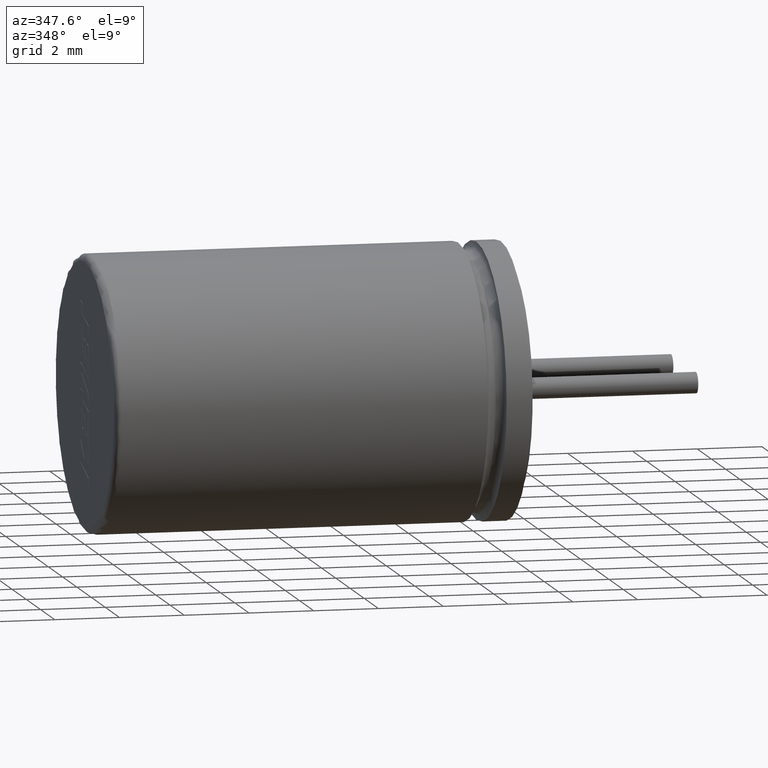
[diagram: clean part render]
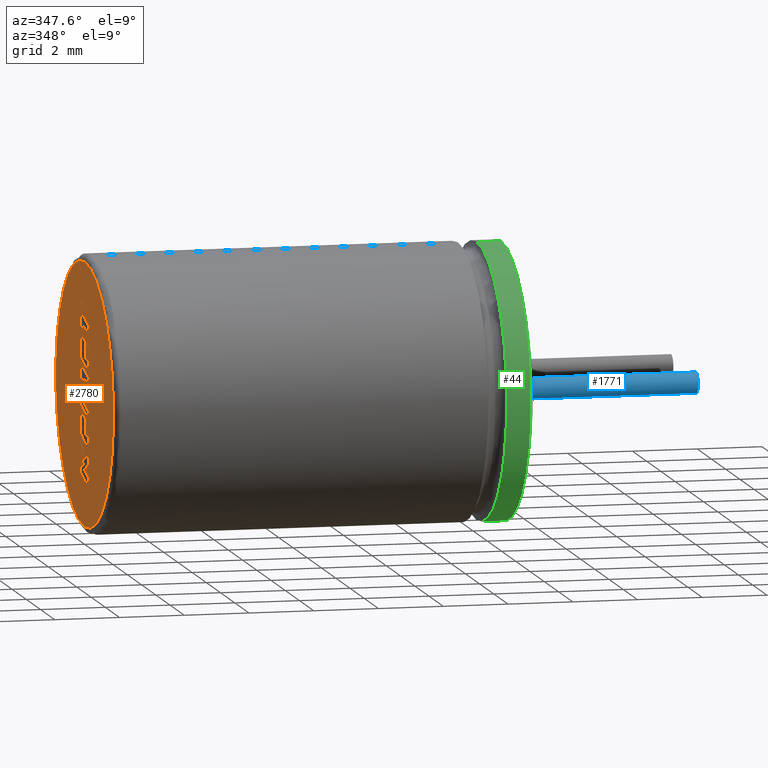
[diagram: same view with three faces highlighted in distinct colors, each labeled with its STEP entity id]
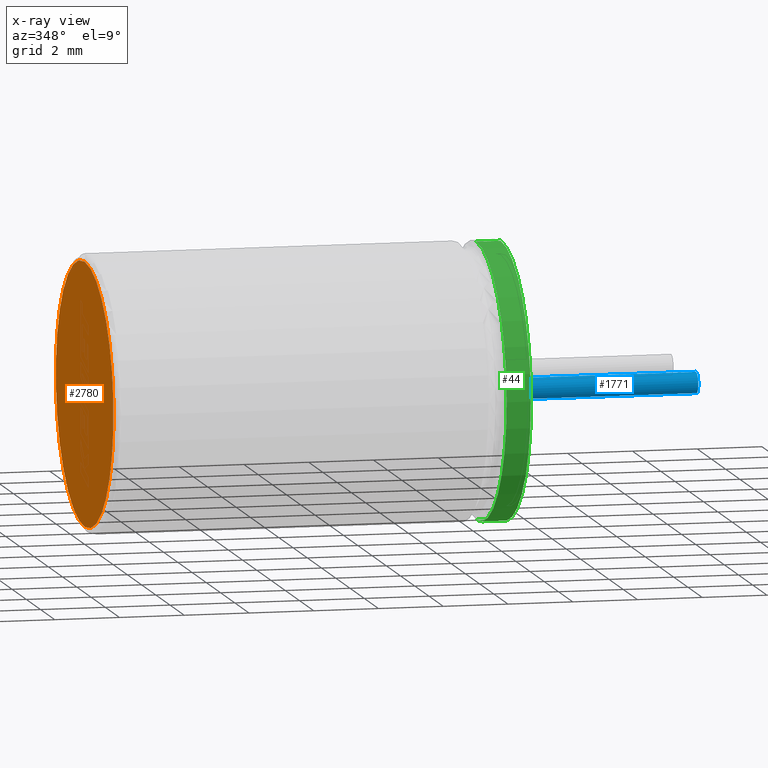
[diagram: x-ray of the same camera — body ghosted, the three highlighted faces saturated]
A machine part, auxiliary view with three faces highlighted in distinct colors.
The next image is the same camera in x-ray (body ghosted, the three faces saturated) — at least one of them is partly hidden behind the body in this view.
Their STEP definitions:

[orange] entity #2780 — the highlighted planar face has unit normal (1, 0, 0).
#9 = CARTESIAN_POINT ( 'NONE',  ( 0.0000000000000000000, 0.0000000000000000000, 0.0000000000000000000 ) ) ;
#35 = ORIENTED_EDGE ( 'NONE', *, *, #2587, .T. ) ;
#178 = EDGE_CURVE ( 'NONE', #1460, #591, #1566, .T. ) ;
#313 = DIRECTION ( 'NONE',  ( 0.0000000000000000000, 0.0000000000000000000, -1.000000000000000000 ) ) ;
#362 = DIRECTION ( 'NONE',  ( -1.000000000000000000, -0.0000000000000000000, -0.0000000000000000000 ) ) ;
#378 = AXIS2_PLACEMENT_3D ( 'NONE', #9, #2454, #313 ) ;
#489 = DIRECTION ( 'NONE',  ( -1.000000000000000000, -0.0000000000000000000, -0.0000000000000000000 ) ) ;
#591 = VERTEX_POINT ( 'NONE', #1343 ) ;
#727 = EDGE_LOOP ( 'NONE', ( #3375, #35 ) ) ;
#737 = CARTESIAN_POINT ( 'NONE',  ( 0.0000000000000000000, 0.0000000000000000000, -4.050000000000000700 ) ) ;
#869 = AXIS2_PLACEMENT_3D ( 'NONE', #1971, #362, #1987 ) ;
#1343 = CARTESIAN_POINT ( 'NONE',  ( 0.0000000000000000000, 5.082284216461516100E-016, 4.050000000000000700 ) ) ;
#1460 = VERTEX_POINT ( 'NONE', #737 ) ;
#1566 = CIRCLE ( 'NONE', #3432, 4.050000000000000700 ) ;
#1944 = FACE_OUTER_BOUND ( 'NONE', #727, .T. ) ;
#1971 = CARTESIAN_POINT ( 'NONE',  ( 0.0000000000000000000, 0.0000000000000000000, 0.0000000000000000000 ) ) ;
#1987 = DIRECTION ( 'NONE',  ( 0.0000000000000000000, 0.0000000000000000000, -1.000000000000000000 ) ) ;
#2195 = CIRCLE ( 'NONE', #869, 4.050000000000000700 ) ;
#2366 = DIRECTION ( 'NONE',  ( 0.0000000000000000000, 0.0000000000000000000, -1.000000000000000000 ) ) ;
#2429 = PLANE ( 'NONE',  #378 ) ;
#2454 = DIRECTION ( 'NONE',  ( 1.000000000000000000, 0.0000000000000000000, 0.0000000000000000000 ) ) ;
#2587 = EDGE_CURVE ( 'NONE', #591, #1460, #2195, .T. ) ;
#2780 = ADVANCED_FACE ( 'NONE', ( #1944 ), #2429, .F. ) ;
#3177 = CARTESIAN_POINT ( 'NONE',  ( 0.0000000000000000000, 0.0000000000000000000, 0.0000000000000000000 ) ) ;
#3375 = ORIENTED_EDGE ( 'NONE', *, *, #178, .T. ) ;
#3432 = AXIS2_PLACEMENT_3D ( 'NONE', #3177, #489, #2366 ) ;

[blue] entity #1771 — the highlighted cylindrical surface (edge-blend (fillet) strip) has radius 0.325 mm, axis along (-1, -0, -0).
#27 = AXIS2_PLACEMENT_3D ( 'NONE', #1382, #244, #2426 ) ;
#244 = DIRECTION ( 'NONE',  ( -1.000000000000000000, -0.0000000000000000000, -0.0000000000000000000 ) ) ;
#388 = CARTESIAN_POINT ( 'NONE',  ( 13.00000000000000200, -1.750000000000000000, 0.0000000000000000000 ) ) ;
#429 = VERTEX_POINT ( 'NONE', #2627 ) ;
#571 = CIRCLE ( 'NONE', #755, 0.3250000000000000100 ) ;
#580 = CARTESIAN_POINT ( 'NONE',  ( 13.00000000000000200, -1.750000000000000000, 0.3250000000000000100 ) ) ;
#712 = EDGE_CURVE ( 'NONE', #2955, #429, #3516, .T. ) ;
#735 = EDGE_CURVE ( 'NONE', #1728, #1292, #2569, .T. ) ;
#743 = CARTESIAN_POINT ( 'NONE',  ( 18.50000000000000400, -1.750000000000000000, 0.3250000000000000100 ) ) ;
#755 = AXIS2_PLACEMENT_3D ( 'NONE', #388, #941, #2547 ) ;
#940 = AXIS2_PLACEMENT_3D ( 'NONE', #1269, #1279, #2320 ) ;
#941 = DIRECTION ( 'NONE',  ( 1.000000000000000000, 0.0000000000000000000, 0.0000000000000000000 ) ) ;
#961 = EDGE_CURVE ( 'NONE', #2955, #1728, #1009, .T. ) ;
#1007 = CARTESIAN_POINT ( 'NONE',  ( 18.50000000000000400, -1.750000000000000000, -0.3250000000000000100 ) ) ;
#1009 = CIRCLE ( 'NONE', #940, 0.3250000000000000100 ) ;
#1041 = CARTESIAN_POINT ( 'NONE',  ( 18.50000000000000400, -1.750000000000000000, 0.3250000000000000100 ) ) ;
#1269 = CARTESIAN_POINT ( 'NONE',  ( 18.50000000000000400, -1.750000000000000000, 0.0000000000000000000 ) ) ;
#1279 = DIRECTION ( 'NONE',  ( -1.000000000000000000, -0.0000000000000000000, -0.0000000000000000000 ) ) ;
#1292 = VERTEX_POINT ( 'NONE', #580 ) ;
#1311 = VECTOR ( 'NONE', #1546, 1000.000000000000000 ) ;
#1368 = DIRECTION ( 'NONE',  ( -1.000000000000000000, -0.0000000000000000000, -0.0000000000000000000 ) ) ;
#1382 = CARTESIAN_POINT ( 'NONE',  ( 18.50000000000000400, -1.750000000000000000, 0.0000000000000000000 ) ) ;
#1424 = FACE_OUTER_BOUND ( 'NONE', #3135, .T. ) ;
#1504 = CYLINDRICAL_SURFACE ( 'NONE', #27, 0.3250000000000000100 ) ;
#1546 = DIRECTION ( 'NONE',  ( -1.000000000000000000, -0.0000000000000000000, -0.0000000000000000000 ) ) ;
#1728 = VERTEX_POINT ( 'NONE', #1041 ) ;
#1771 = ADVANCED_FACE ( 'NONE', ( #1424 ), #1504, .T. ) ;
#2320 = DIRECTION ( 'NONE',  ( 0.0000000000000000000, 0.0000000000000000000, -1.000000000000000000 ) ) ;
#2349 = EDGE_CURVE ( 'NONE', #1292, #429, #571, .T. ) ;
#2376 = ORIENTED_EDGE ( 'NONE', *, *, #735, .T. ) ;
#2426 = DIRECTION ( 'NONE',  ( 0.0000000000000000000, 0.0000000000000000000, 1.000000000000000000 ) ) ;
#2547 = DIRECTION ( 'NONE',  ( 0.0000000000000000000, 0.0000000000000000000, -1.000000000000000000 ) ) ;
#2569 = LINE ( 'NONE', #743, #2903 ) ;
#2627 = CARTESIAN_POINT ( 'NONE',  ( 13.00000000000000200, -1.750000000000000000, -0.3250000000000000100 ) ) ;
#2631 = ORIENTED_EDGE ( 'NONE', *, *, #961, .T. ) ;
#2658 = CARTESIAN_POINT ( 'NONE',  ( 18.50000000000000400, -1.750000000000000000, -0.3250000000000000100 ) ) ;
#2903 = VECTOR ( 'NONE', #1368, 1000.000000000000000 ) ;
#2955 = VERTEX_POINT ( 'NONE', #2658 ) ;
#3135 = EDGE_LOOP ( 'NONE', ( #3349, #2631, #2376, #3402 ) ) ;
#3349 = ORIENTED_EDGE ( 'NONE', *, *, #712, .F. ) ;
#3402 = ORIENTED_EDGE ( 'NONE', *, *, #2349, .T. ) ;
#3516 = LINE ( 'NONE', #1007, #1311 ) ;

[green] entity #44 — the highlighted cylindrical surface (partial cylindrical patch) has radius 4.25 mm, axis along (-1, -0, -0).
#44 = ADVANCED_FACE ( 'NONE', ( #761 ), #1324, .T. ) ;
#121 = VERTEX_POINT ( 'NONE', #2498 ) ;
#240 = AXIS2_PLACEMENT_3D ( 'NONE', #544, #833, #2739 ) ;
#270 = DIRECTION ( 'NONE',  ( -1.000000000000000000, -0.0000000000000000000, -0.0000000000000000000 ) ) ;
#377 = CIRCLE ( 'NONE', #240, 4.250000000000000000 ) ;
#421 = EDGE_CURVE ( 'NONE', #775, #2971, #2649, .T. ) ;
#539 = EDGE_LOOP ( 'NONE', ( #2804, #2433, #1783, #898 ) ) ;
#544 = CARTESIAN_POINT ( 'NONE',  ( 12.85000000000000000, 0.0000000000000000000, 0.0000000000000000000 ) ) ;
#593 = EDGE_CURVE ( 'NONE', #3456, #2971, #1447, .T. ) ;
#662 = EDGE_CURVE ( 'NONE', #121, #3456, #377, .T. ) ;
#705 = VECTOR ( 'NONE', #2234, 1000.000000000000000 ) ;
#710 = VECTOR ( 'NONE', #270, 1000.000000000000000 ) ;
#732 = EDGE_CURVE ( 'NONE', #121, #775, #2850, .T. ) ;
#761 = FACE_OUTER_BOUND ( 'NONE', #539, .T. ) ;
#775 = VERTEX_POINT ( 'NONE', #1087 ) ;
#833 = DIRECTION ( 'NONE',  ( 1.000000000000000000, 0.0000000000000000000, 0.0000000000000000000 ) ) ;
#898 = ORIENTED_EDGE ( 'NONE', *, *, #421, .T. ) ;
#1087 = CARTESIAN_POINT ( 'NONE',  ( 12.10250000000000100, 0.0000000000000000000, 4.250000000000000000 ) ) ;
#1157 = DIRECTION ( 'NONE',  ( 0.0000000000000000000, 0.0000000000000000000, 1.000000000000000000 ) ) ;
#1158 = CARTESIAN_POINT ( 'NONE',  ( 12.10250000000000100, 5.204748896376249700E-016, -4.250000000000000000 ) ) ;
#1324 = CYLINDRICAL_SURFACE ( 'NONE', #2486, 4.250000000000000000 ) ;
#1337 = DIRECTION ( 'NONE',  ( 0.0000000000000000000, 0.0000000000000000000, -1.000000000000000000 ) ) ;
#1354 = CARTESIAN_POINT ( 'NONE',  ( 12.85000000000000000, 5.204748896376249700E-016, -4.250000000000000000 ) ) ;
#1447 = LINE ( 'NONE', #1354, #710 ) ;
#1783 = ORIENTED_EDGE ( 'NONE', *, *, #732, .T. ) ;
#2132 = DIRECTION ( 'NONE',  ( 1.000000000000000000, -0.0000000000000000000, -0.0000000000000000000 ) ) ;
#2208 = DIRECTION ( 'NONE',  ( -1.000000000000000000, -0.0000000000000000000, -0.0000000000000000000 ) ) ;
#2234 = DIRECTION ( 'NONE',  ( -1.000000000000000000, -0.0000000000000000000, -0.0000000000000000000 ) ) ;
#2433 = ORIENTED_EDGE ( 'NONE', *, *, #662, .F. ) ;
#2486 = AXIS2_PLACEMENT_3D ( 'NONE', #3256, #2208, #1157 ) ;
#2498 = CARTESIAN_POINT ( 'NONE',  ( 12.85000000000000000, 0.0000000000000000000, 4.250000000000000000 ) ) ;
#2649 = CIRCLE ( 'NONE', #2865, 4.250000000000000000 ) ;
#2684 = CARTESIAN_POINT ( 'NONE',  ( 12.85000000000000000, 5.204748896376249700E-016, -4.250000000000000000 ) ) ;
#2739 = DIRECTION ( 'NONE',  ( 0.0000000000000000000, 0.0000000000000000000, -1.000000000000000000 ) ) ;
#2804 = ORIENTED_EDGE ( 'NONE', *, *, #593, .F. ) ;
#2850 = LINE ( 'NONE', #2879, #705 ) ;
#2865 = AXIS2_PLACEMENT_3D ( 'NONE', #3457, #2132, #1337 ) ;
#2879 = CARTESIAN_POINT ( 'NONE',  ( 12.85000000000000000, 0.0000000000000000000, 4.250000000000000000 ) ) ;
#2971 = VERTEX_POINT ( 'NONE', #1158 ) ;
#3256 = CARTESIAN_POINT ( 'NONE',  ( 12.85000000000000000, 0.0000000000000000000, 0.0000000000000000000 ) ) ;
#3456 = VERTEX_POINT ( 'NONE', #2684 ) ;
#3457 = CARTESIAN_POINT ( 'NONE',  ( 12.10250000000000100, 0.0000000000000000000, 0.0000000000000000000 ) ) ;